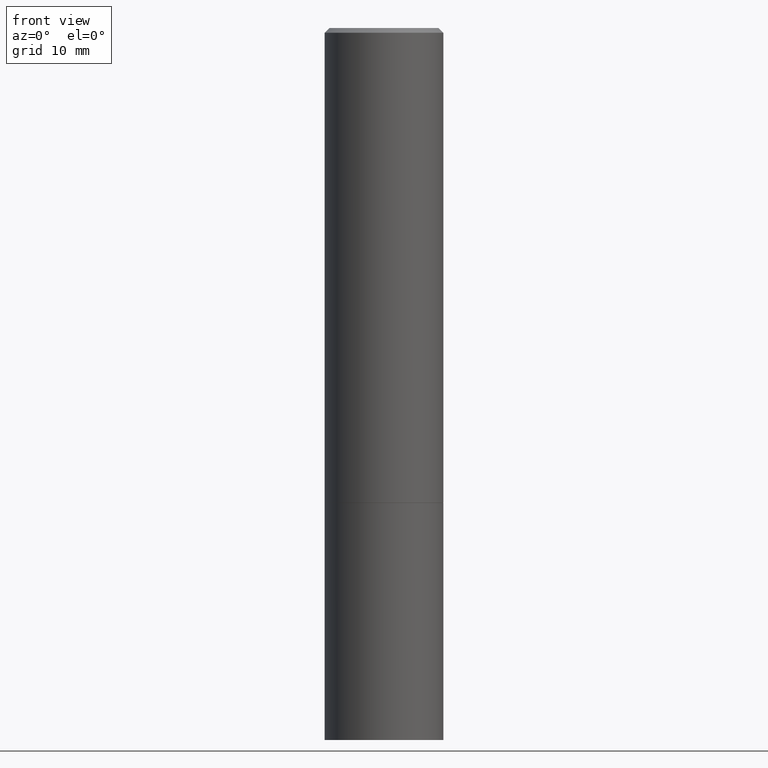
[diagram: clean part render]
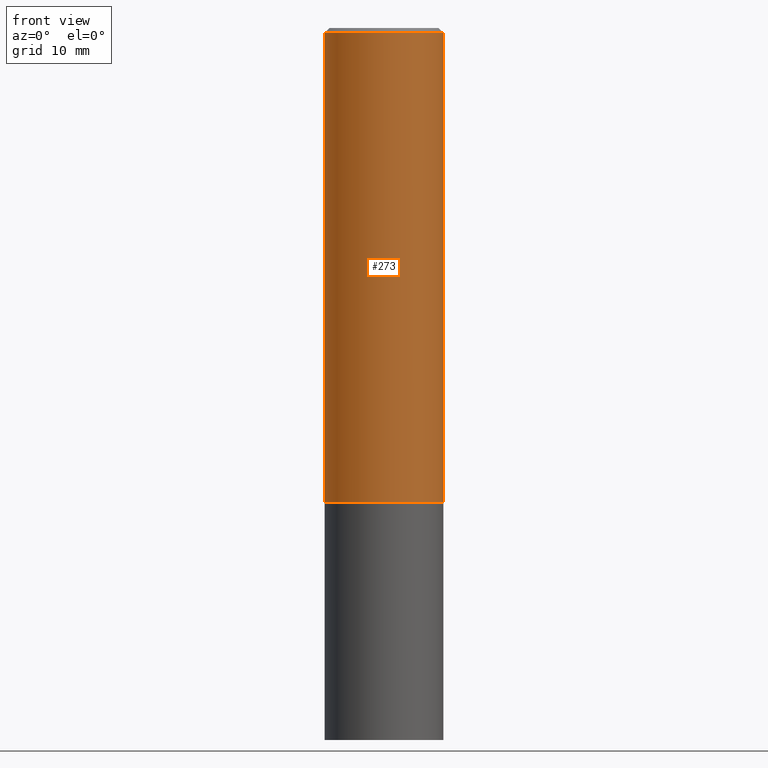
[diagram: same view with one face highlighted and labeled with its STEP entity id]
A machine part, front view. The second image highlights one B-rep face of the part: STEP entity #273.
In plain terms, the highlighted cylindrical surface (partial cylindrical patch) has radius 6.35 mm, axis along (-0, 0, 1).
Its self-contained STEP definition (entity closure, byte-faithful):
#7 = CARTESIAN_POINT ( 'NONE',  ( 4.890937612370296805E-31, -6.982962677686323656E-17, -0.02000000000000009409 ) ) ;
#20 = VECTOR ( 'NONE', #106, 39.37007874015748143 ) ;
#22 = VERTEX_POINT ( 'NONE', #248 ) ;
#25 = CARTESIAN_POINT ( 'NONE',  ( 0.2500000000000000000, -8.725211865769015625E-15, -1.999000000000000110 ) ) ;
#36 = DIRECTION ( 'NONE',  ( -2.445468806185136877E-29, 3.491481338843145188E-15, 1.000000000000000000 ) ) ;
#42 = ORIENTED_EDGE ( 'NONE', *, *, #61, .T. ) ;
#43 = DIRECTION ( 'NONE',  ( -2.445468806185136597E-29, 3.491481338843145583E-15, 1.000000000000000000 ) ) ;
#61 = EDGE_CURVE ( 'NONE', #151, #127, #147, .T. ) ;
#85 = DIRECTION ( 'NONE',  ( -2.445468806185136597E-29, 3.491481338843145583E-15, 1.000000000000000000 ) ) ;
#91 = DIRECTION ( 'NONE',  ( 1.000000000000000000, -6.982962677686266711E-15, 4.876176775795935793E-29 ) ) ;
#93 = ORIENTED_EDGE ( 'NONE', *, *, #204, .F. ) ;
#94 = AXIS2_PLACEMENT_3D ( 'NONE', #97, #280, #108 ) ;
#95 = CYLINDRICAL_SURFACE ( 'NONE', #263, 0.2499999999999998057 ) ;
#97 = CARTESIAN_POINT ( 'NONE',  ( 4.888492143564088712E-29, -6.979471196347448158E-15, -1.999000000000000110 ) ) ;
#106 = DIRECTION ( 'NONE',  ( -2.445468806185136877E-29, 3.491481338843145188E-15, 1.000000000000000000 ) ) ;
#108 = DIRECTION ( 'NONE',  ( 1.000000000000000000, -6.982962677686266711E-15, 0.000000000000000000 ) ) ;
#127 = VERTEX_POINT ( 'NONE', #258 ) ;
#138 = DIRECTION ( 'NONE',  ( 1.000000000000000000, -6.982962677686267499E-15, 0.000000000000000000 ) ) ;
#147 = LINE ( 'NONE', #177, #208 ) ;
#151 = VERTEX_POINT ( 'NONE', #25 ) ;
#177 = CARTESIAN_POINT ( 'NONE',  ( 0.2499999999999998057, -1.745740669421565297E-15, 1.219044193948982967E-29 ) ) ;
#179 = ORIENTED_EDGE ( 'NONE', *, *, #321, .F. ) ;
#184 = CIRCLE ( 'NONE', #94, 0.2500000000000000000 ) ;
#204 = EDGE_CURVE ( 'NONE', #243, #127, #341, .T. ) ;
#206 = CARTESIAN_POINT ( 'NONE',  ( -0.2499999999999996114, 1.675911042644700618E-15, -0.02000000000000009409 ) ) ;
#208 = VECTOR ( 'NONE', #36, 39.37007874015748143 ) ;
#210 = AXIS2_PLACEMENT_3D ( 'NONE', #7, #85, #138 ) ;
#213 = EDGE_LOOP ( 'NONE', ( #179, #271, #42, #93 ) ) ;
#223 = LINE ( 'NONE', #343, #20 ) ;
#243 = VERTEX_POINT ( 'NONE', #206 ) ;
#248 = CARTESIAN_POINT ( 'NONE',  ( -0.2500000000000000555, -1.748293572161902502E-15, -1.999000000000000110 ) ) ;
#258 = CARTESIAN_POINT ( 'NONE',  ( 0.2499999999999996114, -1.784954126219743428E-15, -0.02000000000000009409 ) ) ;
#263 = AXIS2_PLACEMENT_3D ( 'NONE', #330, #43, #91 ) ;
#271 = ORIENTED_EDGE ( 'NONE', *, *, #286, .T. ) ;
#273 = ADVANCED_FACE ( 'NONE', ( #278 ), #95, .T. ) ;
#278 = FACE_OUTER_BOUND ( 'NONE', #213, .T. ) ;
#280 = DIRECTION ( 'NONE',  ( -2.445468806185136597E-29, 3.491481338843145583E-15, 1.000000000000000000 ) ) ;
#286 = EDGE_CURVE ( 'NONE', #22, #151, #184, .T. ) ;
#321 = EDGE_CURVE ( 'NONE', #22, #243, #223, .T. ) ;
#330 = CARTESIAN_POINT ( 'NONE',  ( 0.000000000000000000, 0.000000000000000000, 0.000000000000000000 ) ) ;
#341 = CIRCLE ( 'NONE', #210, 0.2499999999999996114 ) ;
#343 = CARTESIAN_POINT ( 'NONE',  ( -0.2499999999999998057, 1.776356839400249084E-15, -1.229733772563725465E-29 ) ) ;